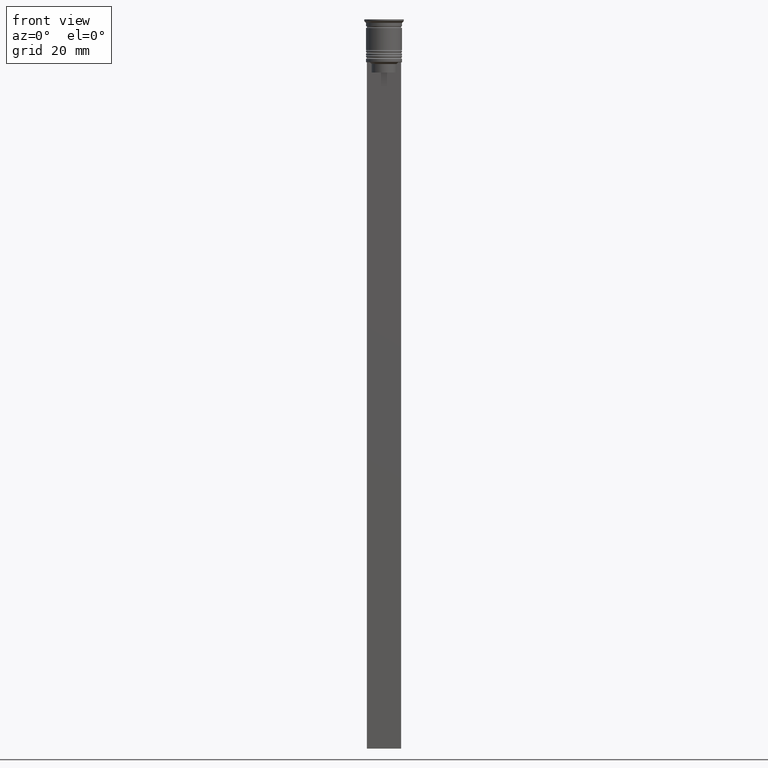
[diagram: clean part render]
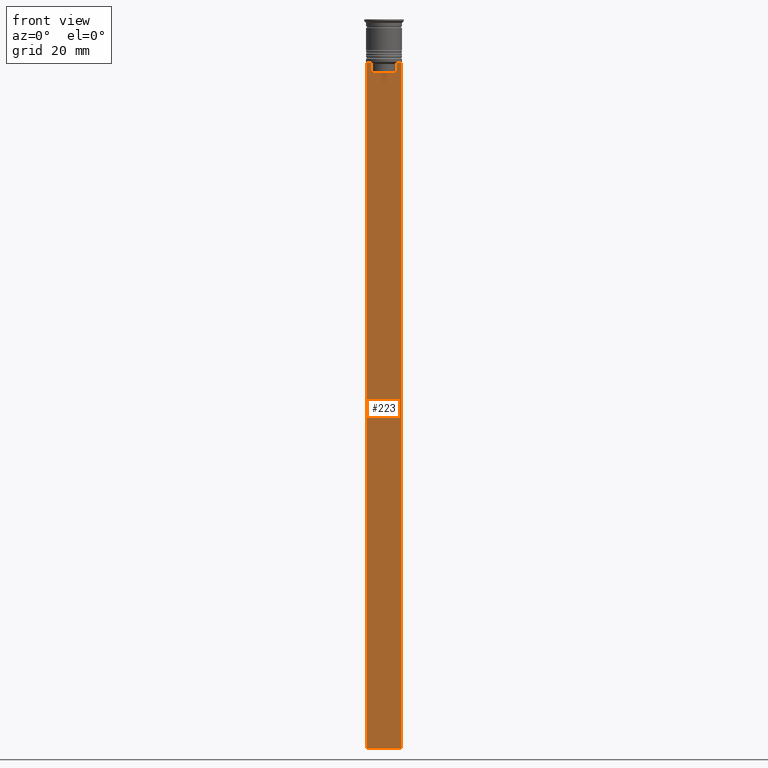
[diagram: same view with one face highlighted and labeled with its STEP entity id]
A machine part, front view. The second image highlights one B-rep face of the part: STEP entity #223.
In plain terms, the highlighted planar face has unit normal (0, -1, -0).
Its self-contained STEP definition (entity closure, byte-faithful):
#86 = ORIENTED_EDGE ( 'NONE', *, *, #1264, .F. ) ;
#125 = VERTEX_POINT ( 'NONE', #1727 ) ;
#157 = ORIENTED_EDGE ( 'NONE', *, *, #1999, .F. ) ;
#162 = CARTESIAN_POINT ( 'NONE',  ( -4.999999999999999112, -0.5000000000000008882, -212.5000000000000284 ) ) ;
#172 = DIRECTION ( 'NONE',  ( 0.000000000000000000, -1.000000000000000000, -0.000000000000000000 ) ) ;
#174 = AXIS2_PLACEMENT_3D ( 'NONE', #1282, #172, #1258 ) ;
#177 = LINE ( 'NONE', #2338, #1387 ) ;
#178 = EDGE_CURVE ( 'NONE', #1605, #1427, #1537, .T. ) ;
#219 = CARTESIAN_POINT ( 'NONE',  ( 3.783746406711540278, -0.5000000000000008882, -12.83343003979123509 ) ) ;
#223 = ADVANCED_FACE ( 'NONE', ( #937 ), #764, .T. ) ;
#256 = VECTOR ( 'NONE', #1623, 1000.000000000000000 ) ;
#269 = LINE ( 'NONE', #962, #1157 ) ;
#298 = DIRECTION ( 'NONE',  ( 0.000000000000000000, 0.000000000000000000, -1.000000000000000000 ) ) ;
#305 = CARTESIAN_POINT ( 'NONE',  ( 3.615591237958188486, -0.5000000000000008882, -15.50000000000000000 ) ) ;
#370 = CARTESIAN_POINT ( 'NONE',  ( 3.615591237958188042, -0.5000000000000008882, -13.00000000000000178 ) ) ;
#388 = EDGE_CURVE ( 'NONE', #685, #1598, #1712, .T. ) ;
#394 = VECTOR ( 'NONE', #1591, 1000.000000000000000 ) ;
#399 = LINE ( 'NONE', #896, #256 ) ;
#457 = ORIENTED_EDGE ( 'NONE', *, *, #388, .F. ) ;
#530 = VERTEX_POINT ( 'NONE', #658 ) ;
#564 = EDGE_CURVE ( 'NONE', #530, #1605, #1558, .T. ) ;
#587 = VERTEX_POINT ( 'NONE', #305 ) ;
#636 = CARTESIAN_POINT ( 'NONE',  ( -3.783746449387932476, -0.5000000000000008882, -12.83342999751715752 ) ) ;
#658 = CARTESIAN_POINT ( 'NONE',  ( 5.000000000000000000, -0.5000000000000008882, -12.50000000000000000 ) ) ;
#664 = ORIENTED_EDGE ( 'NONE', *, *, #178, .F. ) ;
#674 = CARTESIAN_POINT ( 'NONE',  ( 5.000000000000000000, -0.5000000000000008882, -2.450124378879110054 ) ) ;
#685 = VERTEX_POINT ( 'NONE', #2209 ) ;
#703 = DIRECTION ( 'NONE',  ( 1.000000000000000000, 0.000000000000000000, 0.000000000000000000 ) ) ;
#724 = DIRECTION ( 'NONE',  ( -0.000000000000000000, -0.000000000000000000, 1.000000000000000000 ) ) ;
#735 = CARTESIAN_POINT ( 'NONE',  ( 3.951794168112528816, -0.5000000000000008882, -12.66675163073525745 ) ) ;
#764 = PLANE ( 'NONE',  #174 ) ;
#844 = VERTEX_POINT ( 'NONE', #1905 ) ;
#860 = ORIENTED_EDGE ( 'NONE', *, *, #564, .F. ) ;
#879 = ORIENTED_EDGE ( 'NONE', *, *, #975, .F. ) ;
#896 = CARTESIAN_POINT ( 'NONE',  ( 5.000000000000000000, -0.5000000000000008882, -12.50000000000000000 ) ) ;
#937 = FACE_OUTER_BOUND ( 'NONE', #2199, .T. ) ;
#962 = CARTESIAN_POINT ( 'NONE',  ( -4.999999999999999112, -0.5000000000000008882, -2.450124378879110054 ) ) ;
#975 = EDGE_CURVE ( 'NONE', #125, #587, #177, .T. ) ;
#1019 = LINE ( 'NONE', #1205, #394 ) ;
#1086 = VERTEX_POINT ( 'NONE', #370 ) ;
#1157 = VECTOR ( 'NONE', #1715, 1000.000000000000000 ) ;
#1176 = CARTESIAN_POINT ( 'NONE',  ( -3.615591237958188042, -0.5000000000000008882, 0.000000000000000000 ) ) ;
#1196 = VECTOR ( 'NONE', #298, 1000.000000000000000 ) ;
#1205 = CARTESIAN_POINT ( 'NONE',  ( 5.000000000000000000, -0.5000000000000008882, -12.50000000000000000 ) ) ;
#1258 = DIRECTION ( 'NONE',  ( 0.000000000000000000, 0.000000000000000000, -1.000000000000000000 ) ) ;
#1264 = EDGE_CURVE ( 'NONE', #1598, #125, #2094, .T. ) ;
#1282 = CARTESIAN_POINT ( 'NONE',  ( 5.000000000000000000, -0.5000000000000008882, -2.450124378879110054 ) ) ;
#1288 = EDGE_CURVE ( 'NONE', #1945, #1427, #269, .T. ) ;
#1324 = ORIENTED_EDGE ( 'NONE', *, *, #1528, .F. ) ;
#1387 = VECTOR ( 'NONE', #703, 1000.000000000000000 ) ;
#1427 = VERTEX_POINT ( 'NONE', #162 ) ;
#1451 = CARTESIAN_POINT ( 'NONE',  ( 4.119769411022908834, -0.5000000000000008882, -12.50000000000000000 ) ) ;
#1496 = VECTOR ( 'NONE', #1700, 1000.000000000000000 ) ;
#1507 = ORIENTED_EDGE ( 'NONE', *, *, #2270, .F. ) ;
#1521 = CARTESIAN_POINT ( 'NONE',  ( -4.119769411022908834, -0.5000000000000008882, -12.50000000000000000 ) ) ;
#1528 = EDGE_CURVE ( 'NONE', #1086, #844, #1706, .T. ) ;
#1537 = LINE ( 'NONE', #2069, #1496 ) ;
#1558 = LINE ( 'NONE', #674, #1810 ) ;
#1591 = DIRECTION ( 'NONE',  ( 1.000000000000000000, 0.000000000000000000, 0.000000000000000000 ) ) ;
#1598 = VERTEX_POINT ( 'NONE', #2017 ) ;
#1601 = EDGE_CURVE ( 'NONE', #844, #530, #399, .T. ) ;
#1605 = VERTEX_POINT ( 'NONE', #1998 ) ;
#1616 = CARTESIAN_POINT ( 'NONE',  ( 3.615591237958188042, -0.5000000000000008882, 0.000000000000000000 ) ) ;
#1623 = DIRECTION ( 'NONE',  ( 1.000000000000000000, 0.000000000000000000, 0.000000000000000000 ) ) ;
#1629 = CARTESIAN_POINT ( 'NONE',  ( -4.999999999999999112, -0.5000000000000008882, -12.50000000000000000 ) ) ;
#1700 = DIRECTION ( 'NONE',  ( -1.000000000000000000, 0.000000000000000000, 0.000000000000000000 ) ) ;
#1706 = B_SPLINE_CURVE_WITH_KNOTS ( 'NONE', 3,
 ( #2192, #219, #735, #1451 ),
 .UNSPECIFIED., .F., .F.,
 ( 4, 4 ),
 ( 0.01745179617248909451, 0.01816207215777257411 ),
 .UNSPECIFIED. ) ;
#1712 = B_SPLINE_CURVE_WITH_KNOTS ( 'NONE', 3,
 ( #1521, #2044, #636, #1899 ),
 .UNSPECIFIED., .F., .F.,
 ( 4, 4 ),
 ( 0.007067514914986629433, 0.007777582239375527978 ),
 .UNSPECIFIED. ) ;
#1715 = DIRECTION ( 'NONE',  ( 0.000000000000000000, 0.000000000000000000, -1.000000000000000000 ) ) ;
#1727 = CARTESIAN_POINT ( 'NONE',  ( -3.615591237958188486, -0.5000000000000008882, -15.50000000000000000 ) ) ;
#1798 = LINE ( 'NONE', #1616, #1805 ) ;
#1805 = VECTOR ( 'NONE', #724, 1000.000000000000000 ) ;
#1810 = VECTOR ( 'NONE', #2100, 1000.000000000000000 ) ;
#1881 = ORIENTED_EDGE ( 'NONE', *, *, #1288, .T. ) ;
#1899 = CARTESIAN_POINT ( 'NONE',  ( -3.615591237958188042, -0.5000000000000008882, -13.00000000000000178 ) ) ;
#1905 = CARTESIAN_POINT ( 'NONE',  ( 4.119769411022908834, -0.5000000000000008882, -12.50000000000000000 ) ) ;
#1945 = VERTEX_POINT ( 'NONE', #1629 ) ;
#1998 = CARTESIAN_POINT ( 'NONE',  ( 5.000000000000000000, -0.5000000000000008882, -212.5000000000000284 ) ) ;
#1999 = EDGE_CURVE ( 'NONE', #587, #1086, #1798, .T. ) ;
#2017 = CARTESIAN_POINT ( 'NONE',  ( -3.615591237958188042, -0.5000000000000008882, -13.00000000000000178 ) ) ;
#2044 = CARTESIAN_POINT ( 'NONE',  ( -3.951794205566887985, -0.5000000000000008882, -12.66675159355373914 ) ) ;
#2069 = CARTESIAN_POINT ( 'NONE',  ( 5.000000000000000000, -0.5000000000000008882, -212.5000000000000284 ) ) ;
#2094 = LINE ( 'NONE', #1176, #1196 ) ;
#2100 = DIRECTION ( 'NONE',  ( 0.000000000000000000, 0.000000000000000000, -1.000000000000000000 ) ) ;
#2192 = CARTESIAN_POINT ( 'NONE',  ( 3.615591237958188042, -0.5000000000000008882, -13.00000000000000178 ) ) ;
#2199 = EDGE_LOOP ( 'NONE', ( #457, #1507, #1881, #664, #860, #2238, #1324, #157, #879, #86 ) ) ;
#2209 = CARTESIAN_POINT ( 'NONE',  ( -4.119769411022908834, -0.5000000000000008882, -12.50000000000000000 ) ) ;
#2238 = ORIENTED_EDGE ( 'NONE', *, *, #1601, .F. ) ;
#2270 = EDGE_CURVE ( 'NONE', #1945, #685, #1019, .T. ) ;
#2338 = CARTESIAN_POINT ( 'NONE',  ( 0.000000000000000000, -0.5000000000000008882, -15.50000000000000000 ) ) ;